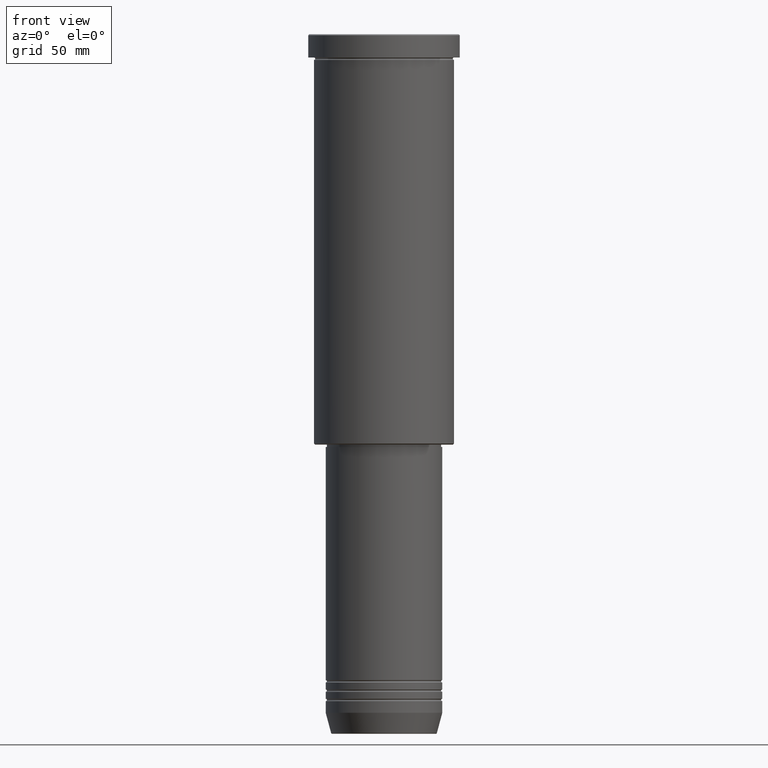
[diagram: clean part render]
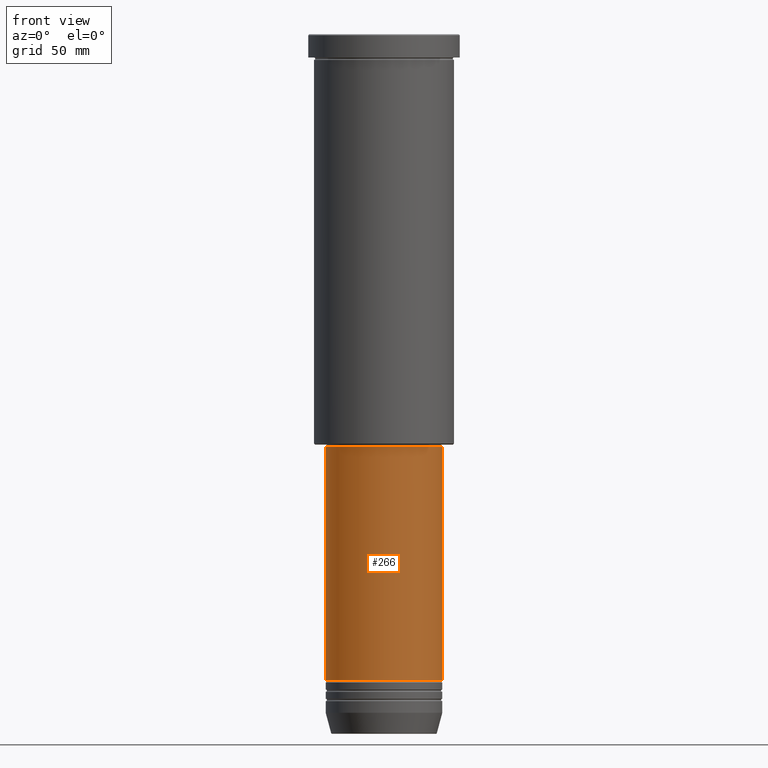
[diagram: same view with one face highlighted and labeled with its STEP entity id]
A machine part, front view. The second image highlights one B-rep face of the part: STEP entity #266.
In plain terms, the highlighted cylindrical surface (partial cylindrical patch) has radius 25 mm, axis along (-0, -0, 1).
Its self-contained STEP definition (entity closure, byte-faithful):
#6 = LINE ( 'NONE', #374, #705 ) ;
#94 = FACE_OUTER_BOUND ( 'NONE', #891, .T. ) ;
#137 = DIRECTION ( 'NONE',  ( -0.000000000000000000, -0.000000000000000000, 1.000000000000000000 ) ) ;
#149 = AXIS2_PLACEMENT_3D ( 'NONE', #1085, #723, #359 ) ;
#266 = ADVANCED_FACE ( 'NONE', ( #94 ), #272, .T. ) ;
#272 = CYLINDRICAL_SURFACE ( 'NONE', #1135, 25.00000000000000355 ) ;
#359 = DIRECTION ( 'NONE',  ( 1.000000000000000000, 0.000000000000000000, 0.000000000000000000 ) ) ;
#374 = CARTESIAN_POINT ( 'NONE',  ( 25.00000000000000355, 0.000000000000000000, 0.000000000000000000 ) ) ;
#471 = DIRECTION ( 'NONE',  ( -0.000000000000000000, -0.000000000000000000, 1.000000000000000000 ) ) ;
#533 = CARTESIAN_POINT ( 'NONE',  ( 25.00000000000000000, 0.000000000000000000, -276.9999999999999432 ) ) ;
#541 = CARTESIAN_POINT ( 'NONE',  ( 0.000000000000000000, 0.000000000000000000, -177.0000000000000000 ) ) ;
#602 = LINE ( 'NONE', #1055, #618 ) ;
#618 = VECTOR ( 'NONE', #137, 1000.000000000000000 ) ;
#622 = DIRECTION ( 'NONE',  ( 1.000000000000000000, 0.000000000000000000, 0.000000000000000000 ) ) ;
#645 = VERTEX_POINT ( 'NONE', #777 ) ;
#648 = VERTEX_POINT ( 'NONE', #760 ) ;
#702 = ORIENTED_EDGE ( 'NONE', *, *, #1051, .F. ) ;
#705 = VECTOR ( 'NONE', #471, 1000.000000000000000 ) ;
#716 = EDGE_CURVE ( 'NONE', #1031, #648, #602, .T. ) ;
#723 = DIRECTION ( 'NONE',  ( -0.000000000000000000, -0.000000000000000000, 1.000000000000000000 ) ) ;
#725 = CIRCLE ( 'NONE', #149, 25.00000000000000000 ) ;
#755 = EDGE_CURVE ( 'NONE', #1031, #874, #725, .T. ) ;
#760 = CARTESIAN_POINT ( 'NONE',  ( -25.00000000000001066, 3.061616997868384226E-15, -177.0000000000000000 ) ) ;
#777 = CARTESIAN_POINT ( 'NONE',  ( 25.00000000000000711, 0.000000000000000000, -177.0000000000000000 ) ) ;
#831 = ORIENTED_EDGE ( 'NONE', *, *, #972, .T. ) ;
#874 = VERTEX_POINT ( 'NONE', #533 ) ;
#891 = EDGE_LOOP ( 'NONE', ( #1016, #958, #831, #702 ) ) ;
#904 = DIRECTION ( 'NONE',  ( 1.000000000000000000, 0.000000000000000000, 0.000000000000000000 ) ) ;
#905 = AXIS2_PLACEMENT_3D ( 'NONE', #541, #1111, #904 ) ;
#958 = ORIENTED_EDGE ( 'NONE', *, *, #755, .T. ) ;
#967 = CIRCLE ( 'NONE', #905, 25.00000000000000711 ) ;
#972 = EDGE_CURVE ( 'NONE', #874, #645, #6, .T. ) ;
#993 = CARTESIAN_POINT ( 'NONE',  ( -25.00000000000000000, 3.061616997868383437E-15, -276.9999999999999432 ) ) ;
#1004 = CARTESIAN_POINT ( 'NONE',  ( 0.000000000000000000, 0.000000000000000000, 0.000000000000000000 ) ) ;
#1016 = ORIENTED_EDGE ( 'NONE', *, *, #716, .F. ) ;
#1031 = VERTEX_POINT ( 'NONE', #993 ) ;
#1051 = EDGE_CURVE ( 'NONE', #648, #645, #967, .T. ) ;
#1055 = CARTESIAN_POINT ( 'NONE',  ( -25.00000000000000355, 3.061616997868383437E-15, 0.000000000000000000 ) ) ;
#1084 = DIRECTION ( 'NONE',  ( -0.000000000000000000, -0.000000000000000000, 1.000000000000000000 ) ) ;
#1085 = CARTESIAN_POINT ( 'NONE',  ( 0.000000000000000000, 0.000000000000000000, -276.9999999999999432 ) ) ;
#1111 = DIRECTION ( 'NONE',  ( -0.000000000000000000, -0.000000000000000000, 1.000000000000000000 ) ) ;
#1135 = AXIS2_PLACEMENT_3D ( 'NONE', #1004, #1084, #622 ) ;